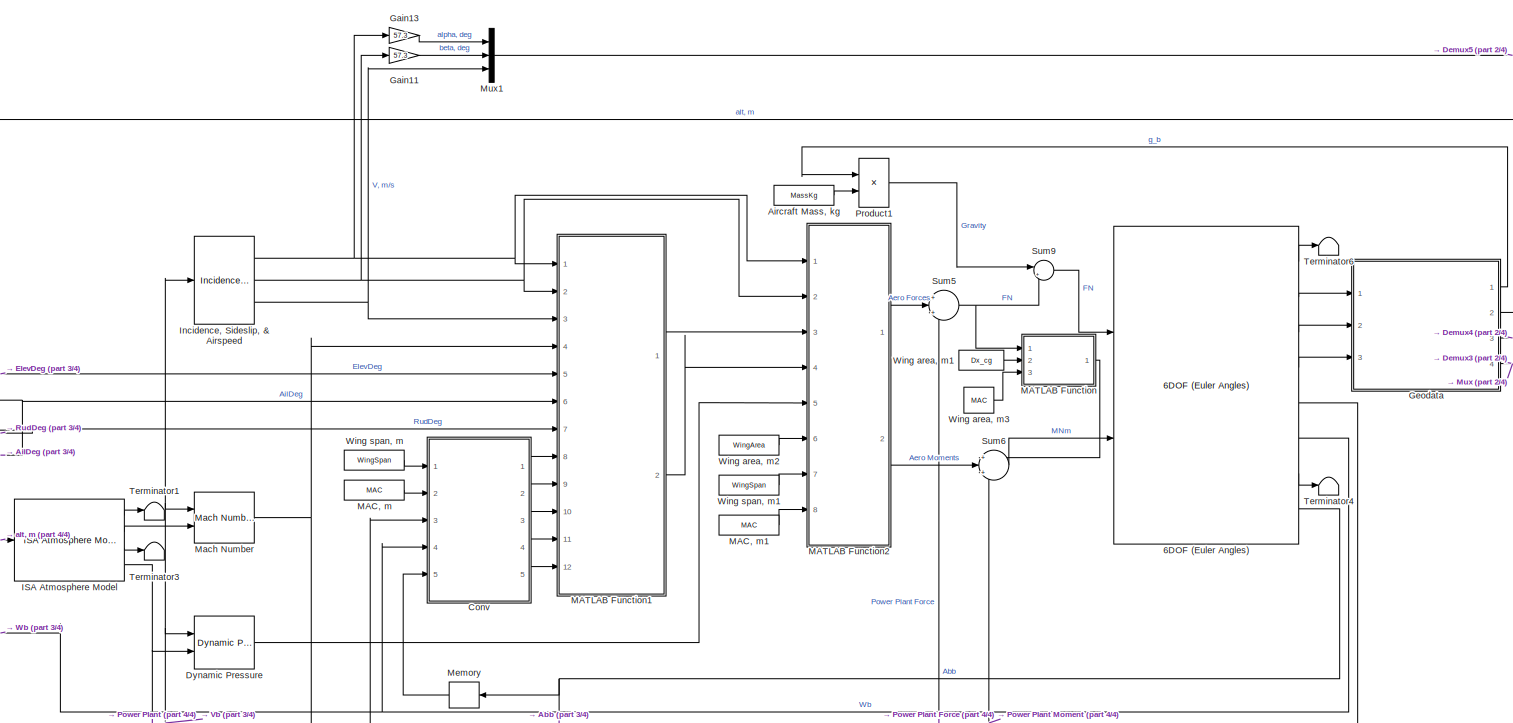
[diagram: root canvas - part 1/4, central region]
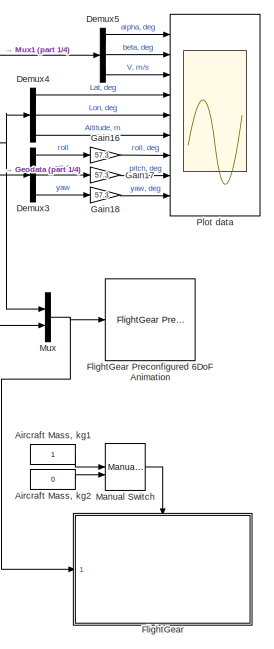
[diagram: root canvas - part 2/4, middle right region]
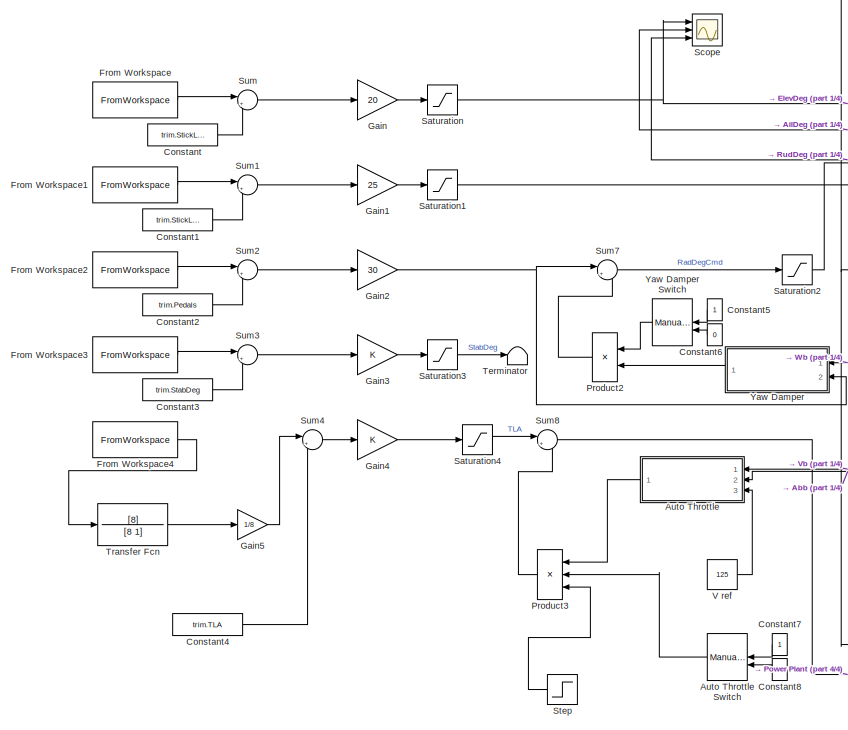
[diagram: root canvas - part 3/4, middle left region]
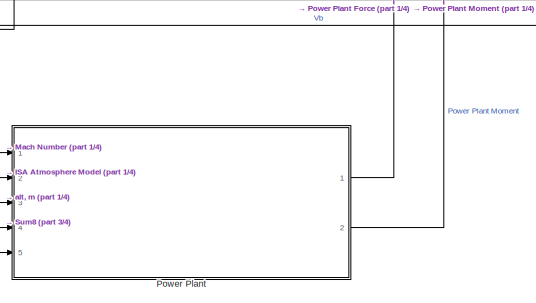
[diagram: root canvas - part 4/4, bottom center region]
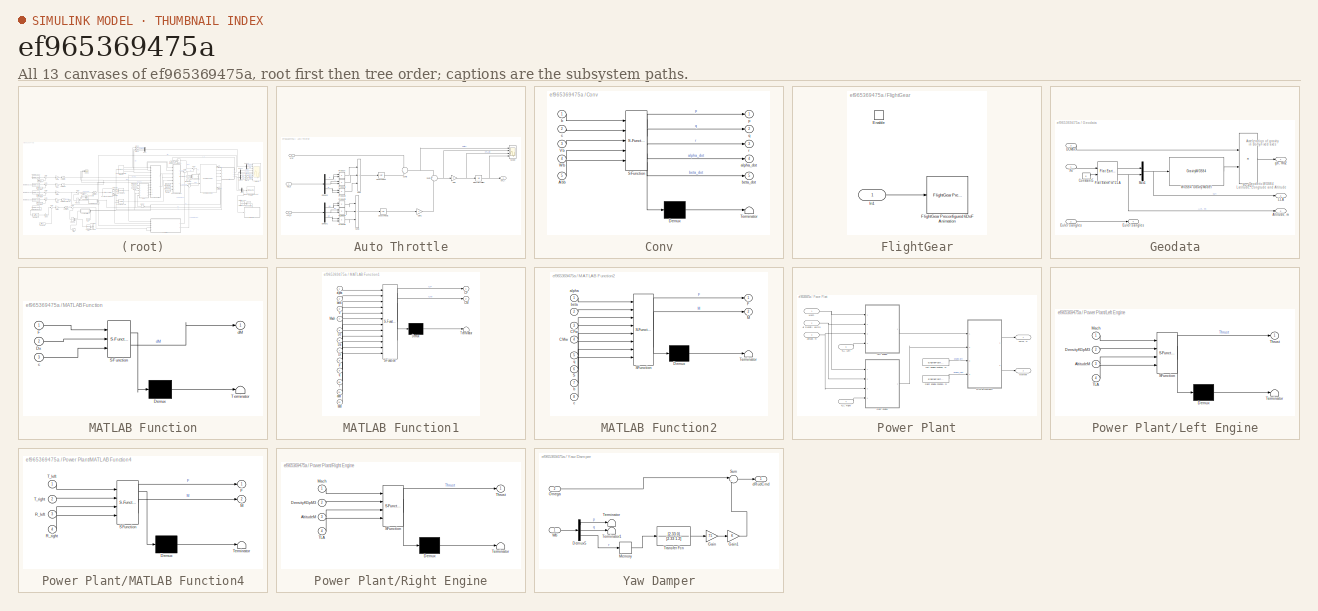
[diagram: thumbnail index - all 13 canvases of the model, root first then tree order]
MODEL slx_ef965369475a
KIND model
CONFIG AbsTol = auto
CONFIG EnableMultiTasking = off
CONFIG FixedStep = 0.005
CONFIG MaxStep = auto
CONFIG MinStep = auto
CONFIG RelTol = 1e-3
CONFIG SampleTimeConstraint = Unconstrained
CONFIG SolverName = ode4
CONFIG StartTime = 0.0
CONFIG StopTime = Tsim
BLOCK [ManualSwitch]  Yaw Damper Switch
  CurrentSetting = 0
BLOCK [Reference] 6DOF (Euler Angles)  REF=shared6dof/6DOF (Euler Angles)
  Ports = [2, 8]
  SourceBlock = shared6dof/6DOF (Euler Angles)
  SourceProductBaseCode = AE,PW,MT,UV,VE,VP
  SourceType = 6DOF EoM (Body Axis)
BLOCK [Constant] Aircraft Mass, kg
  Value = MassKg
BLOCK [Constant] Aircraft Mass, kg1
  OutDataTypeStr = boolean
BLOCK [Constant] Aircraft Mass, kg2
  OutDataTypeStr = boolean
  Value = 0
BLOCK [SubSystem] Auto Throttle
  Ports = [3, 1]
  RequestExecContextInheritance = off
BLOCK [ManualSwitch] Auto Throttle Switch
  CurrentSetting = 0
BLOCK [Inport] Auto Throttle/Acef_b
  Port = 2
BLOCK [Demux] Auto Throttle/Demux1
  Outputs = 3
  Ports = [1, 3]
BLOCK [Demux] Auto Throttle/Demux5
  Outputs = 3
  Ports = [1, 3]
BLOCK [Gain] Auto Throttle/Gain
BLOCK [Gain] Auto Throttle/Gain1
  Gain = 2
BLOCK [Integrator] Auto Throttle/Integrator Limited
  LimitOutput = on
  LowerSaturationLimit = 0
  Ports = [1, 1]
  UpperSaturationLimit = 1
BLOCK [Product] Auto Throttle/Product
  Ports = [2, 1]
BLOCK [Product] Auto Throttle/Product1
  Ports = [2, 1]
BLOCK [Product] Auto Throttle/Product2
  Ports = [2, 1]
BLOCK [Product] Auto Throttle/Product3
  Ports = [2, 1]
BLOCK [Product] Auto Throttle/Product4
  Ports = [2, 1]
BLOCK [Product] Auto Throttle/Product5
  Ports = [2, 1]
BLOCK [Scope] Auto Throttle/Scope
  Floating = off
  NumInputPorts = 4
  Ports = [4]
  ScopeSpecificationString = Simulink.scopes.TimeScopeBlockCfg('CurrentConfiguration', extmgr.ConfigurationSet(extmgr.Configuration('Core','General UI',true),extmgr.Configuration('Core','Source UI',true),extmgr.Configuration('Sources','WiredSimulink',true,'DataLoggingVariableName','ScopeData1'),extmgr.Configuration('Visuals','Time Domain',true),extmgr.Configuration('Tools','Plot Navigation',true),extmgr.Configuration('Tools',...<+40ch>
BLOCK [Sqrt] Auto Throttle/Square Root
BLOCK [Sqrt] Auto Throttle/Square Root1
BLOCK [Sum] Auto Throttle/Sum
  IconShape = rectangular
  Inputs = |+++
  Ports = [3, 1]
BLOCK [Sum] Auto Throttle/Sum1
  IconShape = rectangular
  Inputs = |+++
  Ports = [3, 1]
BLOCK [Sum] Auto Throttle/Sum2
  Inputs = +|-
  Ports = [2, 1]
BLOCK [Sum] Auto Throttle/Sum6
  Inputs = -|+
  Ports = [2, 1]
BLOCK [Inport] Auto Throttle/Vel_b
BLOCK [Inport] Auto Throttle/Vref
  Port = 3
BLOCK [Outport] Auto Throttle/dTLA
BLOCK [Constant] Constant
  Value = trim.StickLon
BLOCK [Constant] Constant1
  Value = trim.StickLat
BLOCK [Constant] Constant2
  Value = trim.Pedals
BLOCK [Constant] Constant3
  Value = trim.StabDeg
BLOCK [Constant] Constant4
  Value = trim.TLA
BLOCK [Constant] Constant5
BLOCK [Constant] Constant6
  Value = 0
BLOCK [Constant] Constant7
BLOCK [Constant] Constant8
  Value = 0
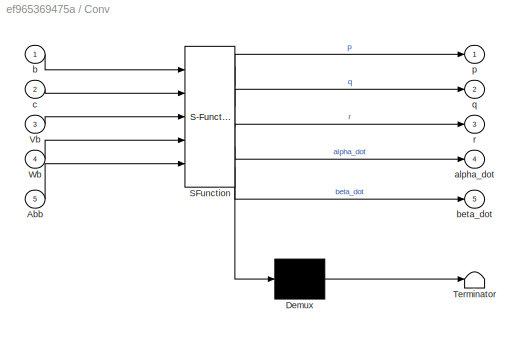
BLOCK [SubSystem] Conv
  ErrorFcn = Stateflow.Translate.translate
  PermitHierarchicalResolution = ExplicitOnly
  Ports = [5, 5]
  RequestExecContextInheritance = off
  SFBlockType = MATLAB Function
  TreatAsAtomicUnit = on
BLOCK [Demux] Conv/ Demux 
  Outputs = 1
  Ports = [1, 1]
BLOCK [S-Function] Conv/ SFunction 
  EnableBusSupport = on
  FunctionName = sf_sfun
  PortCounts = [5 6]
  Ports = [5, 6]
  SFcnIsStateOwnerBlock = off
  SFunctionDeploymentMode = off
  Tag = Stateflow S-Function 6
BLOCK [Terminator] Conv/ Terminator 
BLOCK [Inport] Conv/Abb
  Port = 5
BLOCK [Inport] Conv/Vb
  Port = 3
BLOCK [Inport] Conv/Wb
  Port = 4
BLOCK [Outport] Conv/alpha_dot
  Port = 4
  VectorParamsAs1DForOutWhenUnconnected = off
BLOCK [Inport] Conv/b
BLOCK [Outport] Conv/beta_dot
  Port = 5
  VectorParamsAs1DForOutWhenUnconnected = off
BLOCK [Inport] Conv/c
  Port = 2
BLOCK [Outport] Conv/p
BLOCK [Outport] Conv/q
  Port = 2
  VectorParamsAs1DForOutWhenUnconnected = off
BLOCK [Outport] Conv/r
  Port = 3
  VectorParamsAs1DForOutWhenUnconnected = off
BLOCK [Demux] Demux3
  Outputs = 3
  Ports = [1, 3]
BLOCK [Demux] Demux4
  Outputs = 3
  Ports = [1, 3]
BLOCK [Demux] Demux5
  Outputs = 3
  Ports = [1, 3]
BLOCK [Reference] Dynamic Pressure  REF=aerolibasang/Dynamic Pressure
  Ports = [2, 1]
  SourceBlock = aerolibasang/Dynamic Pressure
  SourceProductBaseCode = AE
  SourceType = Dynamic Pressure
BLOCK [SubSystem] FlightGear
  Ports = [1, 0, 1]
  RequestExecContextInheritance = off
  TreatAsAtomicUnit = on
BLOCK [Reference] FlightGear Preconfigured 6DoF Animation  REF=aerolibfltsims/FlightGear
Preconfigured
6DoF Animation
  Commented = on
  Ports = [1]
  SourceBlock = aerolibfltsims/FlightGear\nPreconfigured\n6DoF Animation
  SourceProductBaseCode = AE
  SourceType = FlightGearQuick6DoFAnimation
BLOCK [EnablePort] FlightGear/Enable
  Ports = []
BLOCK [Reference] FlightGear/FlightGear Preconfigured 6DoF Animation  REF=aerolibfltsims/FlightGear
Preconfigured
6DoF Animation
  Ports = [1]
  SourceBlock = aerolibfltsims/FlightGear\nPreconfigured\n6DoF Animation
  SourceProductBaseCode = AE
  SourceType = FlightGearQuick6DoFAnimation
BLOCK [Inport] FlightGear/In1
BLOCK [FromWorkspace] From Workspace
  VariableName = simin.StickLon
BLOCK [FromWorkspace] From Workspace1
  VariableName = simin.StickLat
BLOCK [FromWorkspace] From Workspace2
  VariableName = simin.Pedals
BLOCK [FromWorkspace] From Workspace3
  VariableName = simin.StabDeg
BLOCK [FromWorkspace] From Workspace4
  VariableName = simin.TLA
BLOCK [Gain] Gain
  Gain = 20
BLOCK [Gain] Gain1
  Gain = 25
BLOCK [Gain] Gain11
  Gain = 57.3
BLOCK [Gain] Gain13
  Gain = 57.3
BLOCK [Gain] Gain16
  Gain = 57.3
BLOCK [Gain] Gain17
  Gain = 57.3
BLOCK [Gain] Gain18
  Gain = 57.3
BLOCK [Gain] Gain2
  Gain = 30
BLOCK [Gain] Gain3
BLOCK [Gain] Gain4
BLOCK [Gain] Gain5
  Gain = 1/8
BLOCK [SubSystem] Geodata
  Ports = [3, 4]
  RequestExecContextInheritance = off
  TreatAsAtomicUnit = on
BLOCK [Outport] Geodata/Altitude, m
  Port = 2
  VectorParamsAs1DForOutWhenUnconnected = off
BLOCK [Constant] Geodata/Constant5
  Value = 0
BLOCK [Inport] Geodata/DCMbe
  Port = 3
BLOCK [Outport] Geodata/Euler's angles
  Port = 4
  VectorParamsAs1DForOutWhenUnconnected = off
BLOCK [Reference] Geodata/Flat Earth to LLA  REF=aerolibtransform2/Flat Earth to LLA
  Ports = [2, 2]
  SourceBlock = aerolibtransform2/Flat Earth to LLA
  SourceProductBaseCode = AE
  SourceType = Flat Earth to LLA
BLOCK [Outport] Geodata/LLA
  Port = 3
  VectorParamsAs1DForOutWhenUnconnected = off
BLOCK [Mux] Geodata/Mux1
  DisplayOption = bar
  Inputs = 2
  Ports = [2, 1]
BLOCK [Product] Geodata/Product
  Multiplication = Matrix(*)
  Ports = [2, 1]
BLOCK [GravityWGS84] Geodata/WGS84 Gravity Model  
  Ports = [1, 1]
BLOCK [Inport] Geodata/Xe
BLOCK [Outport] Geodata/gb, m//s2
  VectorParamsAs1DForOutWhenUnconnected = off
BLOCK [Reference] ISA Atmosphere Model  REF=aerolibatmos2/ISA Atmosphere Model
  Ports = [1, 4]
  SourceBlock = aerolibatmos2/ISA Atmosphere Model
  SourceProductBaseCode = AE
  SourceType = International Standard Atmosphere Model
BLOCK [Reference] Incidence, Sideslip, & Airspeed  REF=aerolibasang/Incidence, Sideslip,
& Airspeed
  Ports = [1, 3]
  SourceBlock = aerolibasang/Incidence, Sideslip,\n& Airspeed
  SourceProductBaseCode = AE
  SourceType = Incidence,Sideslip,&Airspeed
BLOCK [Constant] MAC, m
  Value = MAC
BLOCK [Constant] MAC, m1
  Value = MAC
BLOCK [SubSystem] MATLAB Function
  ErrorFcn = Stateflow.Translate.translate
  PermitHierarchicalResolution = ExplicitOnly
  Ports = [3, 1]
  RequestExecContextInheritance = off
  SFBlockType = MATLAB Function
  TreatAsAtomicUnit = on
BLOCK [Demux] MATLAB Function/ Demux 
  Outputs = 1
  Ports = [1, 1]
BLOCK [S-Function] MATLAB Function/ SFunction 
  EnableBusSupport = on
  FunctionName = sf_sfun
  PortCounts = [3 2]
  Ports = [3, 2]
  SFcnIsStateOwnerBlock = off
  SFunctionDeploymentMode = off
  Tag = Stateflow S-Function 7
BLOCK [Terminator] MATLAB Function/ Terminator 
BLOCK [Inport] MATLAB Function/Dx
  Port = 2
BLOCK [Inport] MATLAB Function/F
BLOCK [Inport] MATLAB Function/c
  Port = 3
BLOCK [Outport] MATLAB Function/dM
  VectorParamsAs1DForOutWhenUnconnected = off
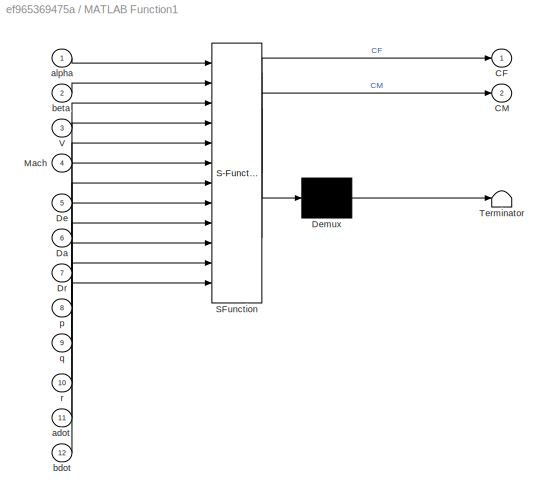
BLOCK [SubSystem] MATLAB Function1
  ErrorFcn = Stateflow.Translate.translate
  PermitHierarchicalResolution = ExplicitOnly
  Ports = [12, 2]
  RequestExecContextInheritance = off
  SFBlockType = MATLAB Function
  TreatAsAtomicUnit = on
BLOCK [Demux] MATLAB Function1/ Demux 
  Outputs = 1
  Ports = [1, 1]
BLOCK [S-Function] MATLAB Function1/ SFunction 
  EnableBusSupport = on
  FunctionName = sf_sfun
  PortCounts = [12 3]
  Ports = [12, 3]
  SFcnIsStateOwnerBlock = off
  SFunctionDeploymentMode = off
  Tag = Stateflow S-Function 1
BLOCK [Terminator] MATLAB Function1/ Terminator 
BLOCK [Outport] MATLAB Function1/CF
BLOCK [Outport] MATLAB Function1/CM
  Port = 2
BLOCK [Inport] MATLAB Function1/Da
  Port = 6
BLOCK [Inport] MATLAB Function1/De
  Port = 5
BLOCK [Inport] MATLAB Function1/Dr
  Port = 7
BLOCK [Inport] MATLAB Function1/Mach
  Port = 4
BLOCK [Inport] MATLAB Function1/V
  Port = 3
BLOCK [Inport] MATLAB Function1/adot
  Port = 11
BLOCK [Inport] MATLAB Function1/alpha
BLOCK [Inport] MATLAB Function1/bdot
  Port = 12
BLOCK [Inport] MATLAB Function1/beta
  Port = 2
BLOCK [Inport] MATLAB Function1/p
  Port = 8
BLOCK [Inport] MATLAB Function1/q
  Port = 9
BLOCK [Inport] MATLAB Function1/r
  Port = 10
BLOCK [SubSystem] MATLAB Function2
  ErrorFcn = Stateflow.Translate.translate
  PermitHierarchicalResolution = ExplicitOnly
  Ports = [8, 2]
  RequestExecContextInheritance = off
  SFBlockType = MATLAB Function
  TreatAsAtomicUnit = on
BLOCK [Demux] MATLAB Function2/ Demux 
  Outputs = 1
  Ports = [1, 1]
BLOCK [S-Function] MATLAB Function2/ SFunction 
  EnableBusSupport = on
  FunctionName = sf_sfun
  PortCounts = [8 3]
  Ports = [8, 3]
  SFcnIsStateOwnerBlock = off
  SFunctionDeploymentMode = off
  Tag = Stateflow S-Function 3
BLOCK [Terminator] MATLAB Function2/ Terminator 
BLOCK [Inport] MATLAB Function2/CFw
  Port = 3
BLOCK [Inport] MATLAB Function2/CMw
  Port = 4
BLOCK [Outport] MATLAB Function2/F
BLOCK [Outport] MATLAB Function2/M
  Port = 2
BLOCK [Inport] MATLAB Function2/S
  Port = 6
BLOCK [Inport] MATLAB Function2/alpha
BLOCK [Inport] MATLAB Function2/b
  Port = 7
BLOCK [Inport] MATLAB Function2/beta
  Port = 2
BLOCK [Inport] MATLAB Function2/c
  Port = 8
BLOCK [Inport] MATLAB Function2/q
  Port = 5
BLOCK [Reference] Mach Number  REF=aerolibasang/Mach Number
  Ports = [2, 1]
  SourceBlock = aerolibasang/Mach Number
  SourceProductBaseCode = AE
  SourceType = Mach Number
BLOCK [ManualSwitch] Manual Switch
  CurrentSetting = 0
BLOCK [Memory] Memory
BLOCK [Mux] Mux
  DisplayOption = bar
  Inputs = 2
  Ports = [2, 1]
BLOCK [Mux] Mux1
  DisplayOption = bar
  Inputs = 3
  Ports = [3, 1]
BLOCK [Scope] Plot data
  Floating = off
  NumInputPorts = 9
  Ports = [9]
  ScopeSpecificationString = Simulink.scopes.TimeScopeBlockCfg('CurrentConfiguration', extmgr.ConfigurationSet(extmgr.Configuration('Core','General UI',true),extmgr.Configuration('Core','Source UI',true),extmgr.Configuration('Sources','WiredSimulink',true,'DataLoggingVariableName','ScopeData2'),extmgr.Configuration('Visuals','Time Domain',true,'SerializedDisplays',{struct('MinYLimReal','-5.00000','MaxYLimReal','15.00000','YLa...<+7056ch>
BLOCK [SubSystem] Power Plant
  Ports = [5, 2]
  RequestExecContextInheritance = off
  TreatAsAtomicUnit = on
BLOCK [Inport] Power Plant/Air Density, kg//m3
  Port = 2
BLOCK [Inport] Power Plant/Altitude, m
  Port = 3
BLOCK [Outport] Power Plant/Force, N
  VectorParamsAs1DForOutWhenUnconnected = off
BLOCK [SubSystem] Power Plant/Left Engine
  ErrorFcn = Stateflow.Translate.translate
  PermitHierarchicalResolution = ExplicitOnly
  Ports = [4, 1]
  RequestExecContextInheritance = off
  SFBlockType = MATLAB Function
  TreatAsAtomicUnit = on
BLOCK [Constant] Power Plant/Left Engine Position, m
  Value = EnginePosition_Left
BLOCK [Demux] Power Plant/Left Engine/ Demux 
  Outputs = 1
  Ports = [1, 1]
BLOCK [S-Function] Power Plant/Left Engine/ SFunction 
  EnableBusSupport = on
  FunctionName = sf_sfun
  PortCounts = [4 2]
  Ports = [4, 2]
  SFcnIsStateOwnerBlock = off
  SFunctionDeploymentMode = off
  Tag = Stateflow S-Function 2
BLOCK [Terminator] Power Plant/Left Engine/ Terminator 
BLOCK [Inport] Power Plant/Left Engine/AltitudeM
  Port = 3
BLOCK [Inport] Power Plant/Left Engine/DensityKGpM3
  Port = 2
BLOCK [Inport] Power Plant/Left Engine/Mach
BLOCK [Inport] Power Plant/Left Engine/TLA
  Port = 4
BLOCK [Outport] Power Plant/Left Engine/Thrust
BLOCK [SubSystem] Power Plant/MATLAB Function4
  ErrorFcn = Stateflow.Translate.translate
  PermitHierarchicalResolution = ExplicitOnly
  Ports = [4, 2]
  RequestExecContextInheritance = off
  SFBlockType = MATLAB Function
  TreatAsAtomicUnit = on
BLOCK [Demux] Power Plant/MATLAB Function4/ Demux 
  Outputs = 1
  Ports = [1, 1]
BLOCK [S-Function] Power Plant/MATLAB Function4/ SFunction 
  EnableBusSupport = on
  FunctionName = sf_sfun
  PortCounts = [4 3]
  Ports = [4, 3]
  SFcnIsStateOwnerBlock = off
  SFunctionDeploymentMode = off
  Tag = Stateflow S-Function 5
BLOCK [Terminator] Power Plant/MATLAB Function4/ Terminator 
BLOCK [Outport] Power Plant/MATLAB Function4/F
BLOCK [Outport] Power Plant/MATLAB Function4/M
  Port = 2
  VectorParamsAs1DForOutWhenUnconnected = off
BLOCK [Inport] Power Plant/MATLAB Function4/R_left
  Port = 3
BLOCK [Inport] Power Plant/MATLAB Function4/R_right
  Port = 4
BLOCK [Inport] Power Plant/MATLAB Function4/T_left
BLOCK [Inport] Power Plant/MATLAB Function4/T_right
  Port = 2
BLOCK [Inport] Power Plant/Mach
BLOCK [Outport] Power Plant/Moment
  Port = 2
  VectorParamsAs1DForOutWhenUnconnected = off
BLOCK [SubSystem] Power Plant/Right Engine
  ErrorFcn = Stateflow.Translate.translate
  PermitHierarchicalResolution = ExplicitOnly
  Ports = [4, 1]
  RequestExecContextInheritance = off
  SFBlockType = MATLAB Function
  TreatAsAtomicUnit = on
BLOCK [Constant] Power Plant/Right Engine Position, m
  Value = EnginePosition_Right
BLOCK [Demux] Power Plant/Right Engine/ Demux 
  Outputs = 1
  Ports = [1, 1]
BLOCK [S-Function] Power Plant/Right Engine/ SFunction 
  EnableBusSupport = on
  FunctionName = sf_sfun
  PortCounts = [4 2]
  Ports = [4, 2]
  SFcnIsStateOwnerBlock = off
  SFunctionDeploymentMode = off
  Tag = Stateflow S-Function 4
BLOCK [Terminator] Power Plant/Right Engine/ Terminator 
BLOCK [Inport] Power Plant/Right Engine/AltitudeM
  Port = 3
BLOCK [Inport] Power Plant/Right Engine/DensityKGpM3
  Port = 2
BLOCK [Inport] Power Plant/Right Engine/Mach
BLOCK [Inport] Power Plant/Right Engine/TLA
  Port = 4
BLOCK [Outport] Power Plant/Right Engine/Thrust
BLOCK [Inport] Power Plant/TLA, Left
  Port = 5
BLOCK [Inport] Power Plant/TLA, Right
  Port = 4
BLOCK [Product] Product1
  Ports = [2, 1]
BLOCK [Product] Product2
  Ports = [2, 1]
BLOCK [Product] Product3
  Inputs = 3
  Ports = [3, 1]
BLOCK [Saturate] Saturation
  LowerLimit = -20
  UpperLimit = 20
BLOCK [Saturate] Saturation1
  LowerLimit = -25
  UpperLimit = 25
BLOCK [Saturate] Saturation2
  LowerLimit = -30
  UpperLimit = 30
BLOCK [Saturate] Saturation3
  LowerLimit = -8
  UpperLimit = 3
BLOCK [Saturate] Saturation4
  LowerLimit = 0
  UpperLimit = 1
BLOCK [Scope] Scope
  Floating = off
  NumInputPorts = 3
  Ports = [3]
  ScopeSpecificationString = Simulink.scopes.TimeScopeBlockCfg('CurrentConfiguration', extmgr.ConfigurationSet(extmgr.Configuration('Core','General UI',true),extmgr.Configuration('Core','Source UI',true),extmgr.Configuration('Sources','WiredSimulink',true,'DataLoggingVariableName','ScopeData1'),extmgr.Configuration('Visuals','Time Domain',true,'SerializedDisplays',{struct('MinYLimReal','-2.6316','MaxYLimReal','-0.6316','YLabe...<+3427ch>
BLOCK [Step] Step
  SampleTime = 0
  Time = 0.1
BLOCK [Sum] Sum
  Inputs = |++
  Ports = [2, 1]
BLOCK [Sum] Sum1
  Inputs = |++
  Ports = [2, 1]
BLOCK [Sum] Sum2
  Inputs = |++
  Ports = [2, 1]
BLOCK [Sum] Sum3
  Inputs = |++
  Ports = [2, 1]
BLOCK [Sum] Sum4
  Inputs = |++
  Ports = [2, 1]
BLOCK [Sum] Sum5
  Inputs = +|+|+
  Ports = [3, 1]
BLOCK [Sum] Sum6
  Inputs = +|+|+
  Ports = [3, 1]
BLOCK [Sum] Sum7
  Inputs = |++
  Ports = [2, 1]
BLOCK [Sum] Sum8
  Inputs = |++
  Ports = [2, 1]
BLOCK [Sum] Sum9
  Inputs = |++
  Ports = [2, 1]
BLOCK [Terminator] Terminator
BLOCK [Terminator] Terminator1
BLOCK [Terminator] Terminator3
BLOCK [Terminator] Terminator4
BLOCK [Terminator] Terminator6
BLOCK [TransferFcn] Transfer Fcn
  Denominator = [8 1]
  Numerator = [8]
BLOCK [Constant] V ref
  Value = 125
BLOCK [Constant] Wing area, m1
  Value = Dx_cg
BLOCK [Constant] Wing area, m2
  Value = WingArea
BLOCK [Constant] Wing area, m3
  Value = MAC
BLOCK [Constant] Wing span, m
  Value = WingSpan
BLOCK [Constant] Wing span, m1
  Value = WingSpan
BLOCK [SubSystem] Yaw Damper
  Ports = [2, 1]
  RequestExecContextInheritance = off
BLOCK [Demux] Yaw Damper/Demux5
  Outputs = 3
  Ports = [1, 3]
BLOCK [Gain] Yaw Damper/Gain
  Gain = 75
BLOCK [Gain] Yaw Damper/Gain1
BLOCK [Memory] Yaw Damper/Memory
BLOCK [Inport] Yaw Damper/Omega
  Port = 2
BLOCK [Sum] Yaw Damper/Sum
  Inputs = |++
  Ports = [2, 1]
BLOCK [Terminator] Yaw Damper/Terminator
BLOCK [Terminator] Yaw Damper/Terminator1
BLOCK [TransferFcn] Yaw Damper/Transfer Fcn
  Denominator = [2.33 1.2]
  Numerator = [2.33 0]
BLOCK [Inport] Yaw Damper/Wb
BLOCK [Outport] Yaw Damper/dRudCmd
ANNOTATION Geodata: Geodetic WGS84 Latitude, Longtude and Altitude
ANNOTATION Geodata: Acceleration of gravity in Body-Fixed axes
LINE  Yaw Damper Switch:1 -> Product2:1
LINE 6DOF (Euler Angles):1 -> Terminator6:1
LINE 6DOF (Euler Angles):2 -> Geodata:1
LINE 6DOF (Euler Angles):3 -> Geodata:2
LINE 6DOF (Euler Angles):4 -> Geodata:3
NET 6DOF (Euler Angles):5 -> Auto Throttle:1, Conv:3, Dynamic Pressure:1, Incidence, Sideslip, & Airspeed:1, Mach Number:1
NET 6DOF (Euler Angles):6 -> Conv:4, Yaw Damper:1
LINE 6DOF (Euler Angles):7 -> Terminator4:1
NET 6DOF (Euler Angles):8 -> Auto Throttle:2, Memory:1
LINE Aircraft Mass, kg1:1 -> Manual Switch:1
LINE Aircraft Mass, kg2:1 -> Manual Switch:2
LINE Aircraft Mass, kg:1 -> Product1:2
LINE Auto Throttle Switch:1 -> Product3:2
LINE Auto Throttle/Acef_b:1 -> Auto Throttle/Demux1:1
NET Auto Throttle/Demux1:1 -> Auto Throttle/Product3:1, Auto Throttle/Product3:2
NET Auto Throttle/Demux1:2 -> Auto Throttle/Product4:1, Auto Throttle/Product4:2
NET Auto Throttle/Demux1:3 -> Auto Throttle/Product5:1, Auto Throttle/Product5:2
NET Auto Throttle/Demux5:1 -> Auto Throttle/Product:1, Auto Throttle/Product:2
NET Auto Throttle/Demux5:2 -> Auto Throttle/Product1:1, Auto Throttle/Product1:2
NET Auto Throttle/Demux5:3 -> Auto Throttle/Product2:1, Auto Throttle/Product2:2
LINE Auto Throttle/Gain1:1 -> Auto Throttle/Sum2:2
NET Auto Throttle/Gain:1 -> Auto Throttle/Integrator Limited:1, Auto Throttle/Scope:3
NET Auto Throttle/Integrator Limited:1 -> Auto Throttle/Scope:4, Auto Throttle/dTLA:1
LINE Auto Throttle/Product1:1 -> Auto Throttle/Sum:2
LINE Auto Throttle/Product2:1 -> Auto Throttle/Sum:3
LINE Auto Throttle/Product3:1 -> Auto Throttle/Sum1:1
LINE Auto Throttle/Product4:1 -> Auto Throttle/Sum1:2
LINE Auto Throttle/Product5:1 -> Auto Throttle/Sum1:3
LINE Auto Throttle/Product:1 -> Auto Throttle/Sum:1
LINE Auto Throttle/Square Root1:1 -> Auto Throttle/Gain1:1
LINE Auto Throttle/Square Root:1 -> Auto Throttle/Sum6:2
LINE Auto Throttle/Sum1:1 -> Auto Throttle/Square Root1:1
NET Auto Throttle/Sum2:1 -> Auto Throttle/Gain:1, Auto Throttle/Scope:2
NET Auto Throttle/Sum6:1 -> Auto Throttle/Scope:1, Auto Throttle/Sum2:1
LINE Auto Throttle/Sum:1 -> Auto Throttle/Square Root:1
LINE Auto Throttle/Vel_b:1 -> Auto Throttle/Demux5:1
LINE Auto Throttle/Vref:1 -> Auto Throttle/Sum6:1
LINE Auto Throttle:1 -> Product3:1
LINE Constant1:1 -> Sum1:2
LINE Constant2:1 -> Sum2:2
LINE Constant3:1 -> Sum3:2
LINE Constant4:1 -> Sum4:2
LINE Constant5:1 ->  Yaw Damper Switch:1
LINE Constant6:1 ->  Yaw Damper Switch:2
LINE Constant7:1 -> Auto Throttle Switch:1
LINE Constant8:1 -> Auto Throttle Switch:2
LINE Constant:1 -> Sum:2
LINE Conv:1 -> MATLAB Function1:8
LINE Conv:2 -> MATLAB Function1:9
LINE Conv:3 -> MATLAB Function1:10
LINE Conv:4 -> MATLAB Function1:11
LINE Conv:5 -> MATLAB Function1:12
LINE Demux3:1 -> Gain16:1
LINE Demux3:2 -> Gain17:1
LINE Demux3:3 -> Gain18:1
LINE Demux4:1 -> Plot data:4
LINE Demux4:2 -> Plot data:5
LINE Demux4:3 -> Plot data:6
LINE Demux5:1 -> Plot data:1
LINE Demux5:2 -> Plot data:2
LINE Demux5:3 -> Plot data:3
LINE Dynamic Pressure:1 -> MATLAB Function2:5
LINE FlightGear/In1:1 -> FlightGear/FlightGear Preconfigured 6DoF Animation:1
LINE From Workspace1:1 -> Sum1:1
LINE From Workspace2:1 -> Sum2:1
LINE From Workspace3:1 -> Sum3:1
LINE From Workspace4:1 -> Transfer Fcn:1
LINE From Workspace:1 -> Sum:1
LINE Gain11:1 -> Mux1:2
LINE Gain13:1 -> Mux1:1
LINE Gain16:1 -> Plot data:7
LINE Gain17:1 -> Plot data:8
LINE Gain18:1 -> Plot data:9
LINE Gain1:1 -> Saturation1:1
NET Gain2:1 -> Sum7:1, Yaw Damper:2
LINE Gain3:1 -> Saturation3:1
LINE Gain4:1 -> Saturation4:1
LINE Gain5:1 -> Sum4:1
LINE Gain:1 -> Saturation:1
LINE Geodata/Constant5:1 -> Geodata/Flat Earth to LLA:2
LINE Geodata/DCMbe:1 -> Geodata/Product:1
LINE Geodata/Euler's angles:1 -> Geodata/Euler's angles:1
LINE Geodata/Flat Earth to LLA:1 -> Geodata/Mux1:1
NET Geodata/Flat Earth to LLA:2 -> Geodata/Altitude, m:1, Geodata/Mux1:2
NET Geodata/Mux1:1 -> Geodata/LLA:1, Geodata/WGS84 Gravity Model  :1
LINE Geodata/Product:1 -> Geodata/gb, m//s2:1
LINE Geodata/WGS84 Gravity Model  :1 -> Geodata/Product:2
LINE Geodata/Xe:1 -> Geodata/Flat Earth to LLA:1
LINE Geodata:1 -> Product1:1
NET Geodata:2 -> ISA Atmosphere Model:1, Power Plant:3
NET Geodata:3 -> Demux4:1, Mux:1
NET Geodata:4 -> Demux3:1, Mux:2
LINE ISA Atmosphere Model:1 -> Terminator1:1
LINE ISA Atmosphere Model:2 -> Mach Number:2
LINE ISA Atmosphere Model:3 -> Terminator3:1
NET ISA Atmosphere Model:4 -> Dynamic Pressure:2, Power Plant:2
NET Incidence, Sideslip, & Airspeed:1 -> Gain13:1, MATLAB Function1:1, MATLAB Function2:1
NET Incidence, Sideslip, & Airspeed:2 -> Gain11:1, MATLAB Function1:2, MATLAB Function2:2
NET Incidence, Sideslip, & Airspeed:3 -> MATLAB Function1:3, Mux1:3
LINE MAC, m1:1 -> MATLAB Function2:8
LINE MAC, m:1 -> Conv:2
LINE MATLAB Function1:1 -> MATLAB Function2:3
LINE MATLAB Function1:2 -> MATLAB Function2:4
LINE MATLAB Function2:1 -> Sum5:2
LINE MATLAB Function2:2 -> Sum6:2
LINE MATLAB Function:1 -> Sum6:1
NET Mach Number:1 -> MATLAB Function1:4, Power Plant:1
LINE Manual Switch:1 -> FlightGear:enable
LINE Memory:1 -> Conv:5
LINE Mux1:1 -> Demux5:1
NET Mux:1 -> FlightGear Preconfigured 6DoF Animation:1, FlightGear:1
NET Power Plant/Air Density, kg//m3:1 -> Power Plant/Left Engine:2, Power Plant/Right Engine:2
NET Power Plant/Altitude, m:1 -> Power Plant/Left Engine:3, Power Plant/Right Engine:3
LINE Power Plant/Left Engine Position, m:1 -> Power Plant/MATLAB Function4:3
LINE Power Plant/Left Engine:1 -> Power Plant/MATLAB Function4:1
LINE Power Plant/MATLAB Function4:1 -> Power Plant/Force, N:1
LINE Power Plant/MATLAB Function4:2 -> Power Plant/Moment:1
NET Power Plant/Mach:1 -> Power Plant/Left Engine:1, Power Plant/Right Engine:1
LINE Power Plant/Right Engine Position, m:1 -> Power Plant/MATLAB Function4:4
LINE Power Plant/Right Engine:1 -> Power Plant/MATLAB Function4:2
LINE Power Plant/TLA, Left:1 -> Power Plant/Left Engine:4
LINE Power Plant/TLA, Right:1 -> Power Plant/Right Engine:4
LINE Power Plant:1 -> Sum5:3
LINE Power Plant:2 -> Sum6:3
LINE Product1:1 -> Sum9:1
LINE Product2:1 -> Sum7:2
LINE Product3:1 -> Sum8:2
NET Saturation1:1 -> MATLAB Function1:6, Scope:2
NET Saturation2:1 -> MATLAB Function1:7, Scope:3
LINE Saturation3:1 -> Terminator:1
LINE Saturation4:1 -> Sum8:1
NET Saturation:1 -> MATLAB Function1:5, Scope:1
LINE Step:1 -> Product3:3
LINE Sum1:1 -> Gain1:1
LINE Sum2:1 -> Gain2:1
LINE Sum3:1 -> Gain3:1
LINE Sum4:1 -> Gain4:1
NET Sum5:1 -> MATLAB Function:1, Sum9:2
LINE Sum6:1 -> 6DOF (Euler Angles):2
LINE Sum7:1 -> Saturation2:1
NET Sum8:1 -> Power Plant:4, Power Plant:5
LINE Sum9:1 -> 6DOF (Euler Angles):1
LINE Sum:1 -> Gain:1
LINE Transfer Fcn:1 -> Gain5:1
LINE V ref:1 -> Auto Throttle:3
LINE Wing area, m1:1 -> MATLAB Function:2
LINE Wing area, m2:1 -> MATLAB Function2:6
LINE Wing area, m3:1 -> MATLAB Function:3
LINE Wing span, m1:1 -> MATLAB Function2:7
LINE Wing span, m:1 -> Conv:1
LINE Yaw Damper/Demux5:1 -> Yaw Damper/Terminator:1
LINE Yaw Damper/Demux5:2 -> Yaw Damper/Terminator1:1
LINE Yaw Damper/Demux5:3 -> Yaw Damper/Memory:1
LINE Yaw Damper/Gain1:1 -> Yaw Damper/Sum:2
LINE Yaw Damper/Gain:1 -> Yaw Damper/Gain1:1
LINE Yaw Damper/Memory:1 -> Yaw Damper/Transfer Fcn:1
LINE Yaw Damper/Omega:1 -> Yaw Damper/Sum:1
LINE Yaw Damper/Sum:1 -> Yaw Damper/dRudCmd:1
LINE Yaw Damper/Transfer Fcn:1 -> Yaw Damper/Gain:1
LINE Yaw Damper/Wb:1 -> Yaw Damper/Demux5:1
LINE Yaw Damper:1 -> Product2:2
note: NET lines group one-source signal fan-out (src -> all destinations, sorted); 1:1 wires keep LINE
CHART MATLAB Function states=1 transitions=1
  STATE_LABEL 'eML_blk_kernel()'
  STATE_LABEL 'SCRIPT:\nfunction dM = cg_shift(F,Dx,c)\n\ndM = zeros(3,1);\ndM = cross([-Dx*c; 0; 0],F(:));\n\n\nend'
CHART MATLAB Function1 states=1 transitions=1
  STATE_LABEL 'eML_blk_kernel()'
  STATE_LABEL 'SCRIPT:\nfunction [CF, CM] = C510aero(alpha, beta, V, Mach, De,Da,Dr, p,q,r, adot,bdot)\n%% inputs:\n%  alpha, beta  - rad\n%  Mach         - undim\n%  De,Da,Dr     - deg\n%  p,q,r        - undim\n%  adot         - undim\n%  bdot         - undim\n\n\nAlphaTable = [-10    -8    -6    -4    -2     0     2     4     6     8    10    11    12    13    14    15    16    17    18    19    20    21    22    23    2...<+3608ch>'
CHART Power Plant/Left Engine states=1 transitions=1
  STATE_LABEL 'eML_blk_kernel()'
  STATE_LABEL 'SCRIPT:\nfunction Thrust  = BJprop(Mach,DensityKGpM3,AltitudeM,TLA)\n\nStaticThrust = 6490;\t% Static thrust at sea level, N\t\nThrust       = TLA*StaticThrust*(DensityKGpM3/1.225)^0.7*(1-exp((AltitudeM-17000)/2000)); \t% Thrust at Altitude, N \n\nend\n'
CHART MATLAB Function2 states=1 transitions=1
  STATE_LABEL 'eML_blk_kernel()'
  STATE_LABEL 'SCRIPT:\nfunction [F,M] = Conv2Dim(alpha, beta, CFw, CMw, q, S, b, c)\n% Computation of dimensional forces and moments\n\nF = zeros(3,1);\nM = zeros(3,1);\n\n% Convertion from wind to body frame, ignore sideslip\nCX = -CFw(1)*cos(alpha) + CFw(3)*sin(alpha);\nCY =  CFw(2);\nCZ = -CFw(1)*sin(alpha) - CFw(3)*cos(alpha);\n\n% Dimensional aerodynamic forces and moments\nF(1) = CX * q*S;  % N\nF(2) = CY * q*S;  % N\nF...<+114ch>'
CHART Power Plant/Right Engine states=1 transitions=1
  STATE_LABEL 'eML_blk_kernel()'
  STATE_LABEL 'SCRIPT:\nfunction Thrust  = BJprop(Mach,DensityKGpM3,AltitudeM,TLA)\n\nStaticThrust = 6490;\t% Static thrust at sea level, N\t\nThrust       = TLA*StaticThrust*(DensityKGpM3/1.225)^0.7*(1-exp((AltitudeM-17000)/2000)); \t% Thrust at Altitude, N \n\nend\n'
CHART Power Plant/MATLAB Function4 states=1 transitions=1
  STATE_LABEL 'eML_blk_kernel()'
  STATE_LABEL 'SCRIPT:\nfunction [F,M] = PowerPlantFM(T_left, T_right, R_left, R_right)\n\nF = zeros(3,1);\nM = zeros(3,1);\n\n% Total force (Thrust axes is parallel to xb)\nF(1) = T_left + T_right; % N\n\n% Moments from left and right engine, Nm\nM_left  = cross(R_left,  [T_left;  0; 0]);\nM_right = cross(R_right, [T_right; 0; 0]);\n\n% Total moments, Nm\nM = M_left + M_right;\n\nend'
CHART Conv states=1 transitions=1
  STATE_LABEL 'eML_blk_kernel()'
  STATE_LABEL 'SCRIPT:\nfunction [p,q,r, alpha_dot, beta_dot] = conv2undim(b,c, Vb,Wb,Abb)\n\n%% Additional states, [u,v,w] - m/s, [u_dot,v_dot,w_dot] - m/s2\nu = Vb(1);          u_dot = Abb(1);\nv = Vb(2);          v_dot = Abb(2);\nw = Vb(3);          w_dot = Abb(3);\n\nV     = sqrt(u^2 + v^2 + w^2);\nV_dot = (u*u_dot + v*v_dot + w*w_dot)/V;\n\n% nondimensional\nalpha_dot = c/(2*V) * (u*w_dot - w*u_dot)/(u^2+w^2);\nbeta_dot...<+217ch>'
CHART  states=0 transitions=0
CHART  states=0 transitions=0
CHART  states=0 transitions=0
CHART  states=0 transitions=0
CHART  states=0 transitions=0
CHART  states=0 transitions=0
CHART  states=0 transitions=0
